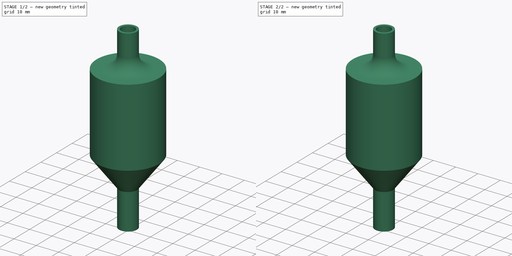
[diagram: build sequence overview — one tinted view per stage of 2, left to right]
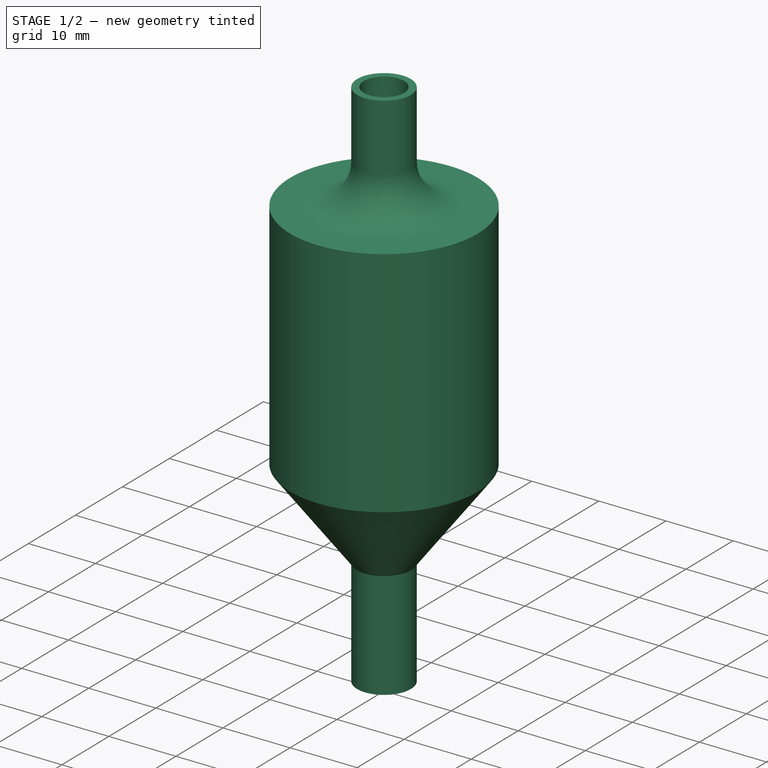
[diagram: stage 1 of 2 — iso view after this stage's code; geometry added in this stage tinted green]
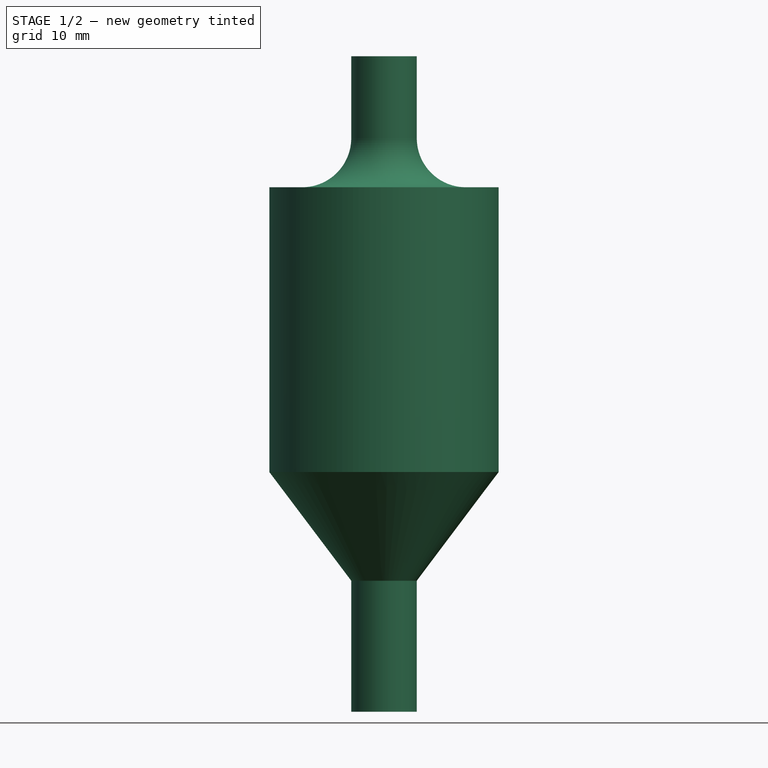
[diagram: stage 1 of 2 — front view after this stage's code; geometry added in this stage tinted green]
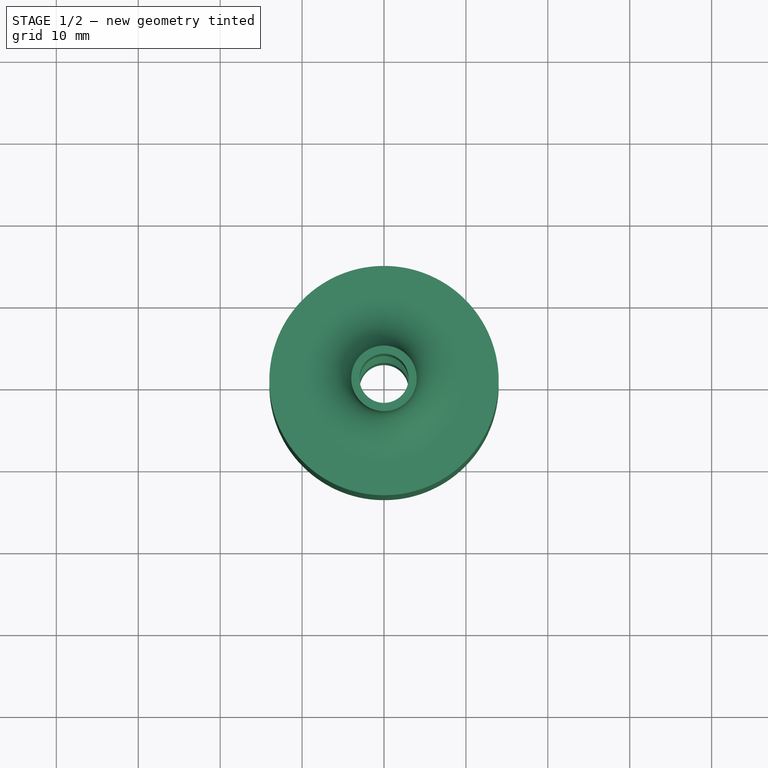
[diagram: stage 1 of 2 — top view after this stage's code; geometry added in this stage tinted green]
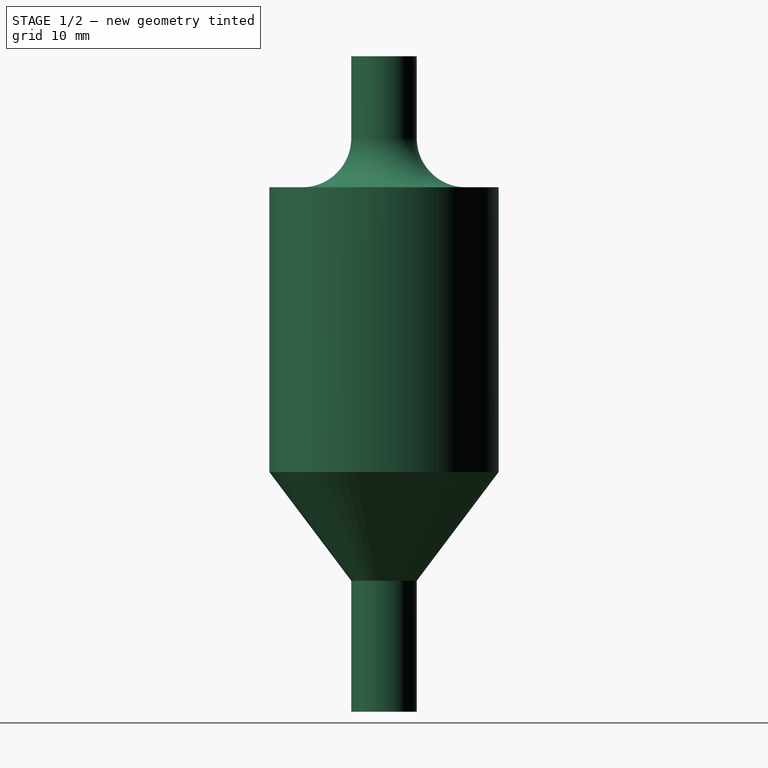
[diagram: stage 1 of 2 — right view after this stage's code; geometry added in this stage tinted green]
FCSTD DOCUMENT  (FreeCAD 0.21R33668 +26 (Git))
Label: Aquarium Pump Connector
License: All rights reserved
LicenseURL: http://en.wikipedia.org/wiki/All_rights_reserved
objects: PartDesign::Fillet×2, Sketcher::SketchObject×1, PartDesign::Revolution×1, PartDesign::Body×1
note: 8 computed .brp shape members not serialized (recipe doc carries the construction recipe); baked Part::Feature solids carry a one-line shape summary decoded from their .brp

FEATURE [Sketcher::SketchObject] Sketch
  FullyConstrained = false
  MapMode = 5
  Placement = pos=(0,0,0) rot=(1,0,0;1.5708rad)
  Support = -> [XZ_Plane]
  sketch-geometry (12):
    g0: LineSegment StartX=-4 StartY=-16 StartZ=0 EndX=-4 EndY=0 EndZ=0
    g1: LineSegment StartX=-4 StartY=0 StartZ=0 EndX=-14 EndY=13.2704 EndZ=0
    g2: LineSegment StartX=-14 StartY=13.2704 StartZ=0 EndX=-14 EndY=48.033 EndZ=0
    g3: LineSegment StartX=-14 StartY=48.033 StartZ=0 EndX=-4 EndY=48.033 EndZ=0
    g4: LineSegment StartX=-4 StartY=48.033 StartZ=0 EndX=-4 EndY=64.033 EndZ=0
    g5: LineSegment StartX=-4 StartY=64.033 StartZ=0 EndX=-3 EndY=64.033 EndZ=0
    g6: LineSegment StartX=-3 StartY=64.033 StartZ=0 EndX=-3 EndY=48.033 EndZ=0
    g7: LineSegment StartX=-3 StartY=48.033 StartZ=0 EndX=-13 EndY=38.847 EndZ=0
    g8: LineSegment StartX=-13 StartY=38.847 StartZ=0 EndX=-13 EndY=13.2704 EndZ=0
    g9: LineSegment StartX=-13 StartY=13.2704 StartZ=0 EndX=-3 EndY=-0.029651 EndZ=0
    g10: LineSegment StartX=-3 StartY=-0.029651 StartZ=0 EndX=-3 EndY=-16 EndZ=0
    g11: LineSegment StartX=-3 StartY=-16 StartZ=0 EndX=-4 EndY=-16 EndZ=0
  constraints (31):
    c: PointOnObject(g0,g-1)
    c: Vertical(g0)
    c: Coincident(g0,g1)
    c: Coincident(g1,g2)
    c: Vertical(g2)
    c: Coincident(g2,g3)
    c: Coincident(g3,g4)
    c: Vertical(g4)
    c: DistanceY(g0,g0) = 16
    c: DistanceY(g4,g4) = 16
    c: Angle(g-1,g1) = 2.21657
    c: DistanceX(g3,g3) = 10
    c: Coincident(g5,g4)
    c: Horizontal(g5)
    c: Coincident(g5,g6)
    c: Vertical(g6)
    c: Coincident(g6,g7)
    c: Coincident(g7,g8)
    c: Vertical(g8)
    c: Coincident(g8,g9)
    c: Coincident(g9,g10)
    c: Vertical(g10)
    c: Coincident(g10,g11)
    c: Coincident(g11,g0)
    c: DistanceX(g0,g9) = 1
    c: Horizontal(g11)
    c: Horizontal(g8,g1)
    c: DistanceX(g1,g8) = 1
    c: Horizontal(g6,g3)
    c: Horizontal(g3)
    c: DistanceX(g5,g5) = 1
FEATURE [PartDesign::Revolution] Revolution
  Angle = 360
  Axis = (0,2e-16,1)
  Base = (0,0,0)
  Placement = pos=(0,0,0) rot=(1,0,0;1.5708rad)
  Profile = -> Sketch
  ReferenceAxis = -> Sketch [V_Axis]
FEATURE [PartDesign::Fillet] Fillet
  Base = -> Revolution [Edge8]
  BaseFeature = -> Revolution
  Placement = pos=(0,0,0) rot=(1,0,0;1.5708rad)
  Radius = 6
  SupportTransform = false
  UseAllEdges = false
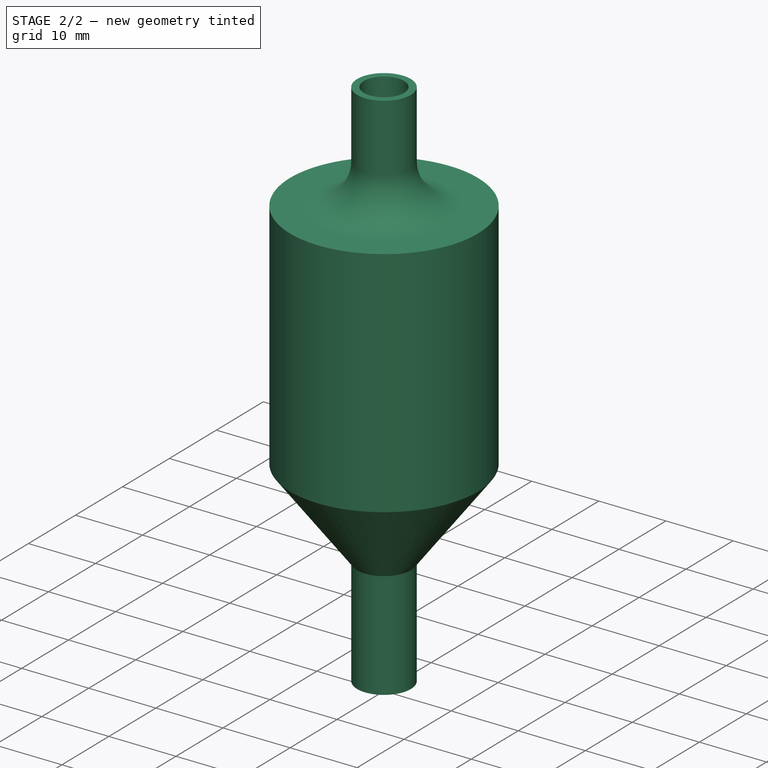
[diagram: stage 2 of 2 — iso view after this stage's code; geometry added in this stage tinted green]
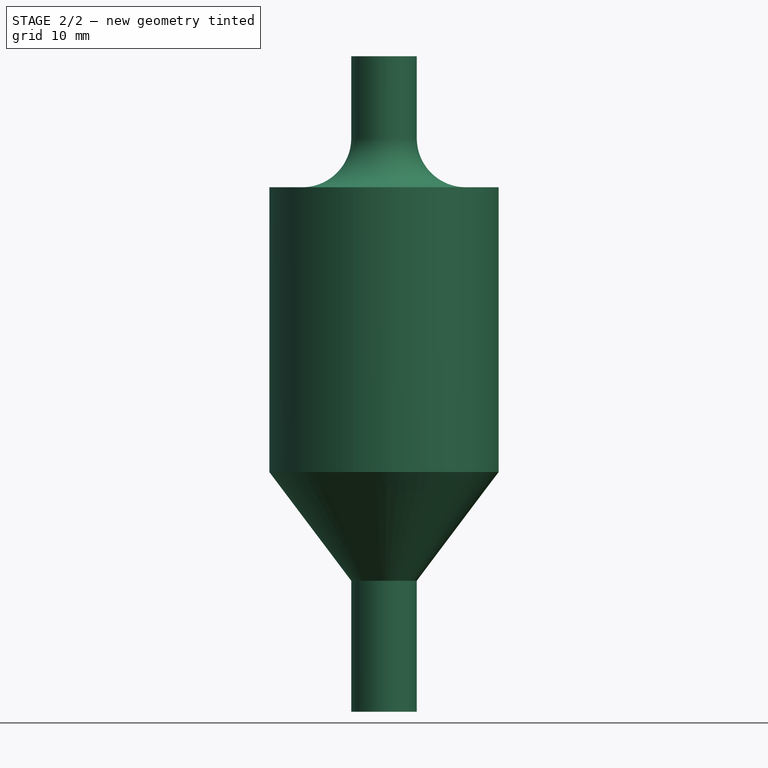
[diagram: stage 2 of 2 — front view after this stage's code; geometry added in this stage tinted green]
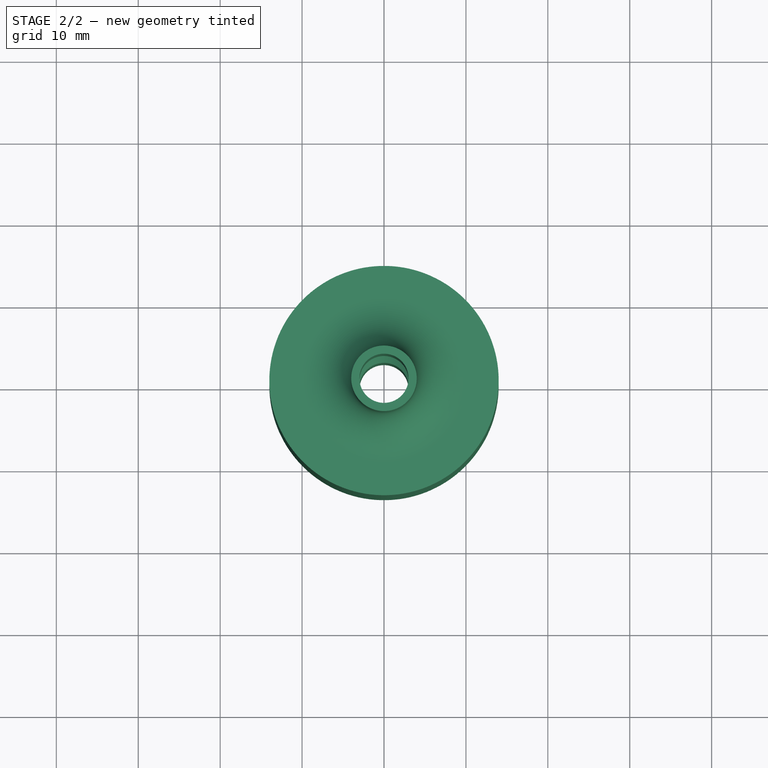
[diagram: stage 2 of 2 — top view after this stage's code; geometry added in this stage tinted green]
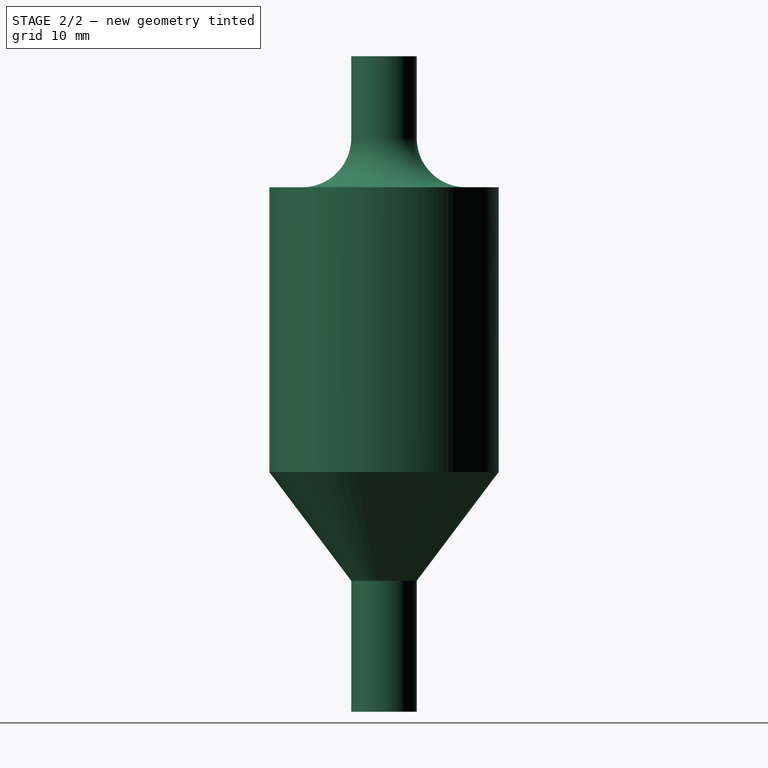
[diagram: stage 2 of 2 — right view after this stage's code; geometry added in this stage tinted green]
FEATURE [PartDesign::Fillet] Fillet002
  Base = -> Fillet
  BaseFeature = -> Fillet
  Placement = pos=(0,0,0) rot=(1,0,0;1.5708rad)
  Radius = 3
  SupportTransform = false
  UseAllEdges = false
FEATURE [PartDesign::Body] Body
  Group = -> [Sketch,Revolution,Fillet,Fillet002]
  Origin = -> Origin
  Tip = -> Fillet002
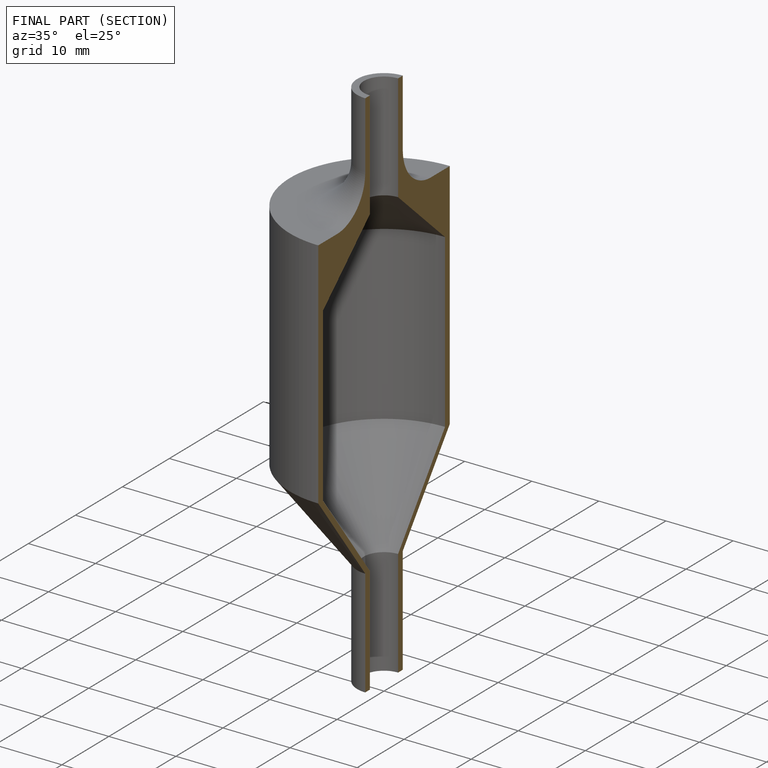
[diagram: finished part — half-section view (interior)]
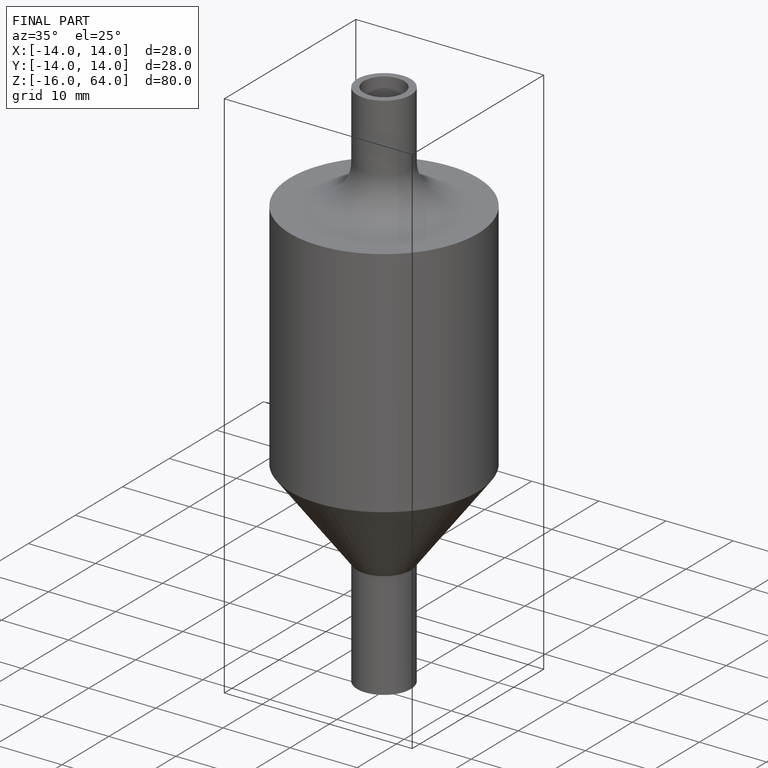
[diagram: finished part — iso view with bounding-box wireframe]
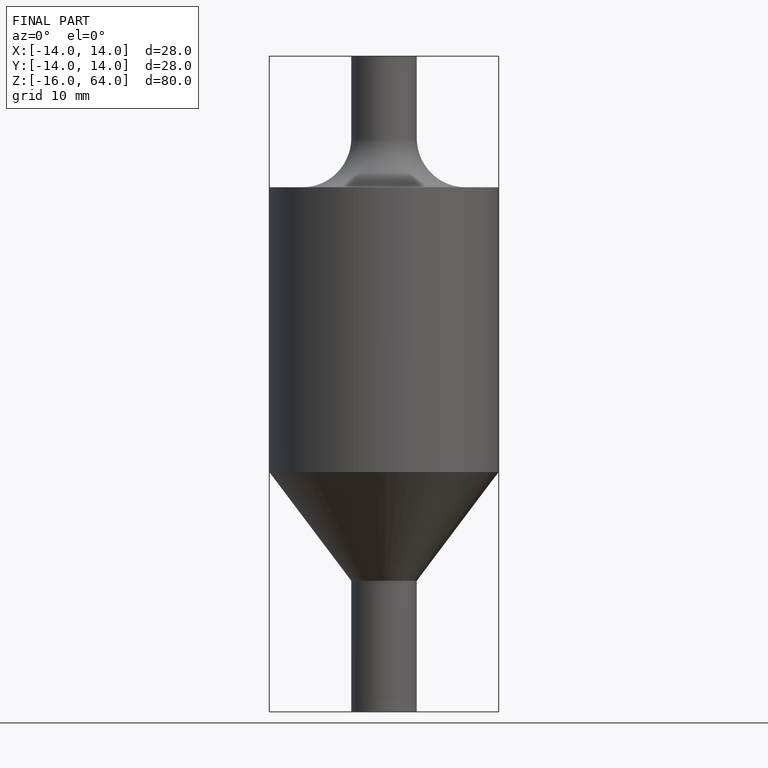
[diagram: finished part — front view with bounding-box wireframe]
